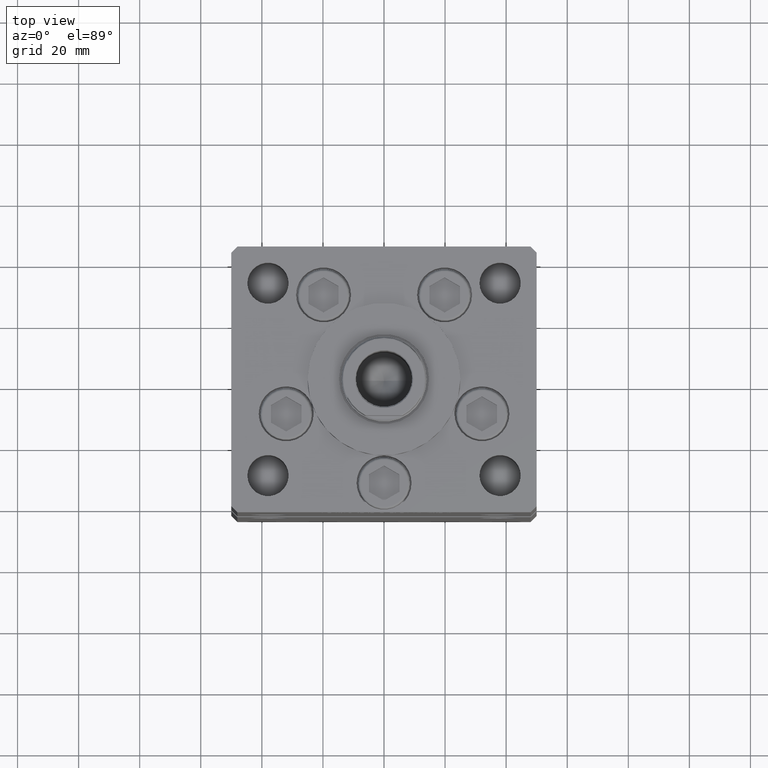
[diagram: clean part render]
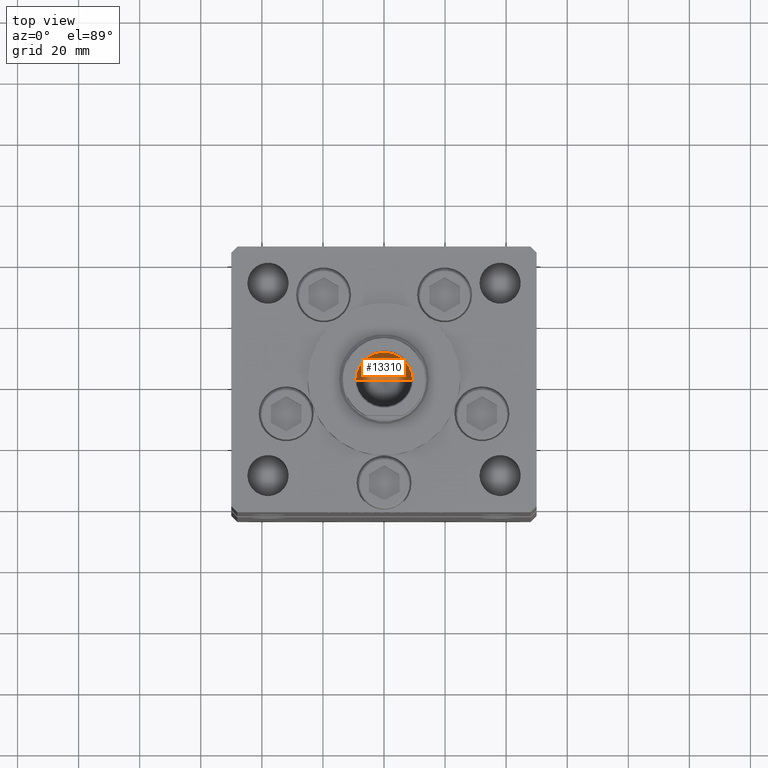
[diagram: same view with one face highlighted and labeled with its STEP entity id]
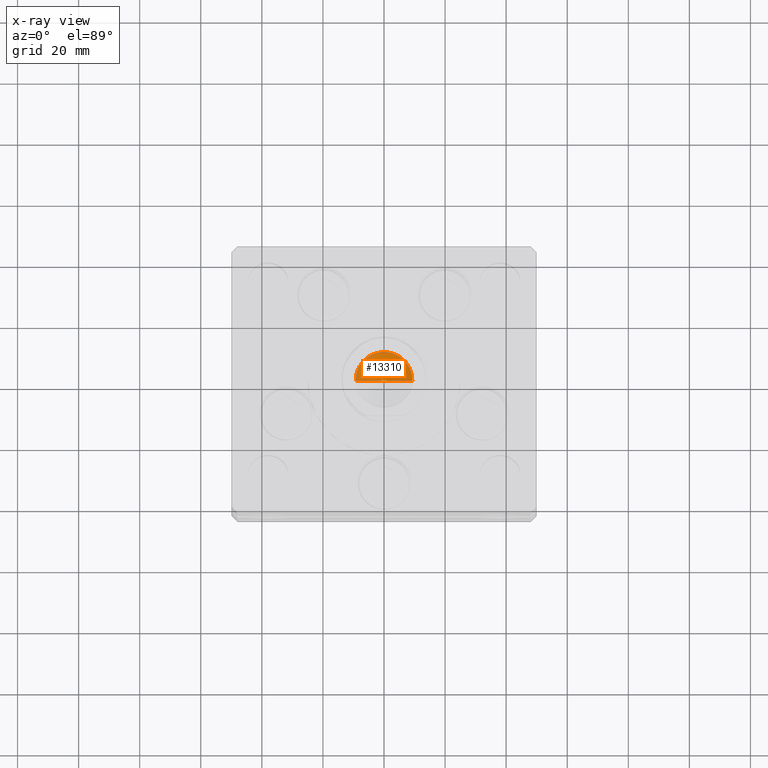
[diagram: x-ray of the same camera — body ghosted, the highlighted face saturated]
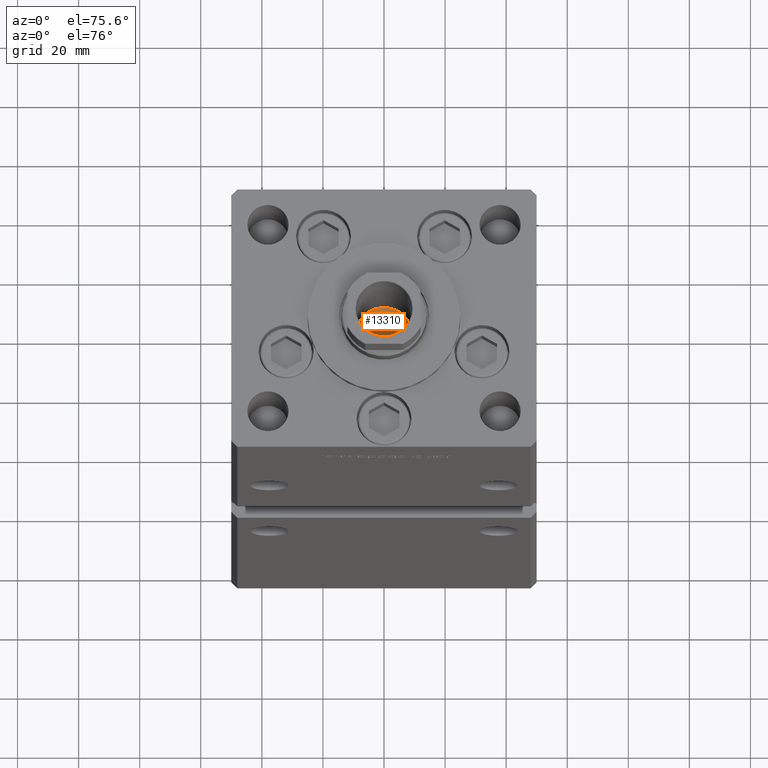
[diagram: same view with one face highlighted and labeled with its STEP entity id]
A machine part, top view. The second image highlights one B-rep face of the part: STEP entity #13310.
The next image is the same camera in x-ray: the body ghosted, the highlighted face saturated — about 0% of this face is hidden behind the body in this view.
A second angle (auxiliary view) of the same face is appended — the face is thin or edge-on in the first view.
In plain terms, the highlighted conical surface has half-angle 59 deg.
Its self-contained STEP definition (entity closure, byte-faithful):
#12 = EDGE_CURVE ( 'NONE', #52173, #1154, #51649, .T. ) ;
#1154 = VERTEX_POINT ( 'NONE', #5157 ) ;
#5157 = CARTESIAN_POINT ( 'NONE',  ( -9.249999999999994671, 1.132798289211300909E-15, 130.2500000000000000 ) ) ;
#6509 = LINE ( 'NONE', #47671, #51471 ) ;
#6792 = DIRECTION ( 'NONE',  ( 0.8571673007021117785, 0.000000000000000000, 0.5150380749100550437 ) ) ;
#10239 = DIRECTION ( 'NONE',  ( -0.8571673007021117785, 1.049727191138617956E-16, 0.5150380749100550437 ) ) ;
#11639 = CARTESIAN_POINT ( 'NONE',  ( 0.000000000000000000, 0.000000000000000000, 130.2500000000000000 ) ) ;
#12328 = CARTESIAN_POINT ( 'NONE',  ( 0.000000000000000000, 0.000000000000000000, 130.2500000000000000 ) ) ;
#13310 = ADVANCED_FACE ( 'NONE', ( #40721 ), #34354, .F. ) ;
#15027 = EDGE_LOOP ( 'NONE', ( #28030, #41079, #50718 ) ) ;
#20001 = DIRECTION ( 'NONE',  ( -0.000000000000000000, -0.000000000000000000, 1.000000000000000000 ) ) ;
#24551 = EDGE_CURVE ( 'NONE', #52173, #39214, #6509, .T. ) ;
#24716 = DIRECTION ( 'NONE',  ( 1.000000000000000000, 0.000000000000000000, 0.000000000000000000 ) ) ;
#28030 = ORIENTED_EDGE ( 'NONE', *, *, #12, .F. ) ;
#28680 = AXIS2_PLACEMENT_3D ( 'NONE', #12328, #45169, #24716 ) ;
#29770 = VECTOR ( 'NONE', #10239, 1000.000000000000000 ) ;
#32096 = CIRCLE ( 'NONE', #28680, 9.249999999999994671 ) ;
#34354 = CONICAL_SURFACE ( 'NONE', #45526, 9.249999999999994671, 1.029744258676653423 ) ;
#34481 = CARTESIAN_POINT ( 'NONE',  ( -9.249999999999994671, 1.132798289211300909E-15, 130.2500000000000000 ) ) ;
#38281 = CARTESIAN_POINT ( 'NONE',  ( 9.249999999999994671, 0.000000000000000000, 130.2500000000000000 ) ) ;
#39214 = VERTEX_POINT ( 'NONE', #38281 ) ;
#40578 = EDGE_CURVE ( 'NONE', #39214, #1154, #32096, .T. ) ;
#40721 = FACE_OUTER_BOUND ( 'NONE', #15027, .T. ) ;
#41079 = ORIENTED_EDGE ( 'NONE', *, *, #24551, .T. ) ;
#41273 = CARTESIAN_POINT ( 'NONE',  ( -1.046994375366439223E-14, 0.000000000000000000, 124.6920392739950643 ) ) ;
#45169 = DIRECTION ( 'NONE',  ( -0.000000000000000000, -0.000000000000000000, 1.000000000000000000 ) ) ;
#45526 = AXIS2_PLACEMENT_3D ( 'NONE', #11639, #20001, #53045 ) ;
#47671 = CARTESIAN_POINT ( 'NONE',  ( 9.249999999999994671, 0.000000000000000000, 130.2500000000000000 ) ) ;
#50718 = ORIENTED_EDGE ( 'NONE', *, *, #40578, .T. ) ;
#51471 = VECTOR ( 'NONE', #6792, 1000.000000000000000 ) ;
#51649 = LINE ( 'NONE', #34481, #29770 ) ;
#52173 = VERTEX_POINT ( 'NONE', #41273 ) ;
#53045 = DIRECTION ( 'NONE',  ( 1.000000000000000000, 0.000000000000000000, 0.000000000000000000 ) ) ;